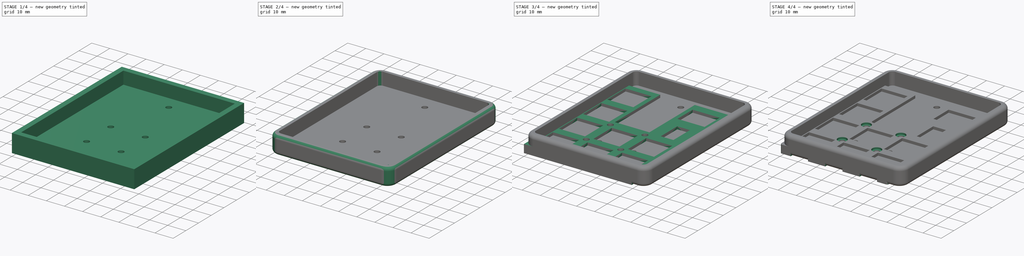
[diagram: build sequence overview — one tinted view per stage of 4, left to right]
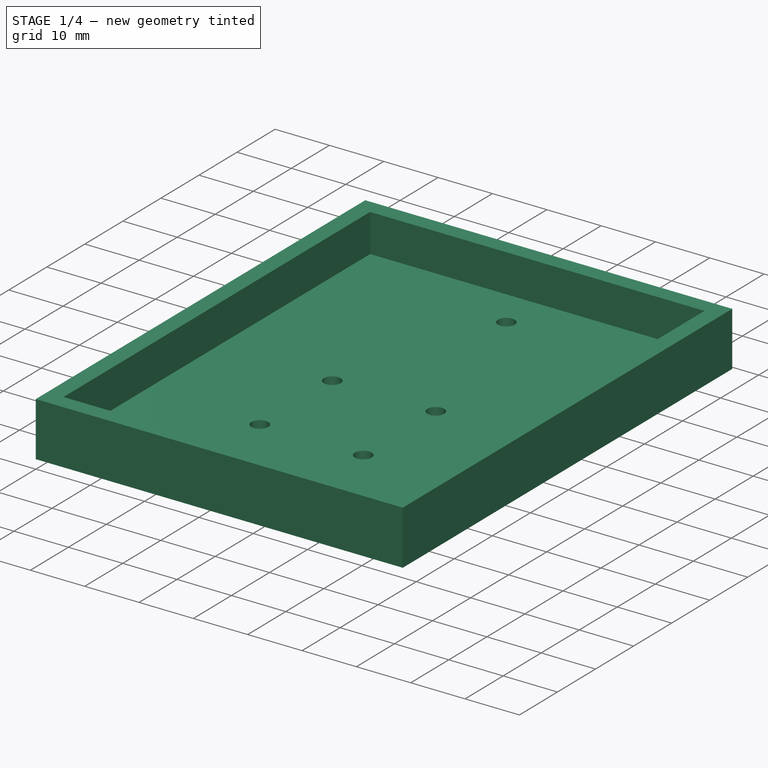
[diagram: stage 1 of 4 — iso view after this stage's code; geometry added in this stage tinted green]
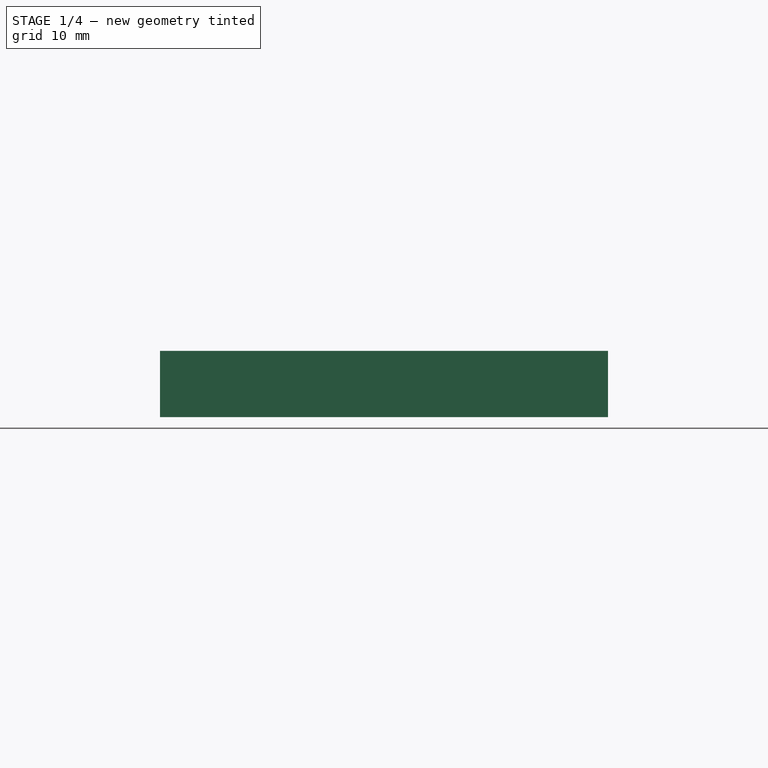
[diagram: stage 1 of 4 — front view after this stage's code; geometry added in this stage tinted green]
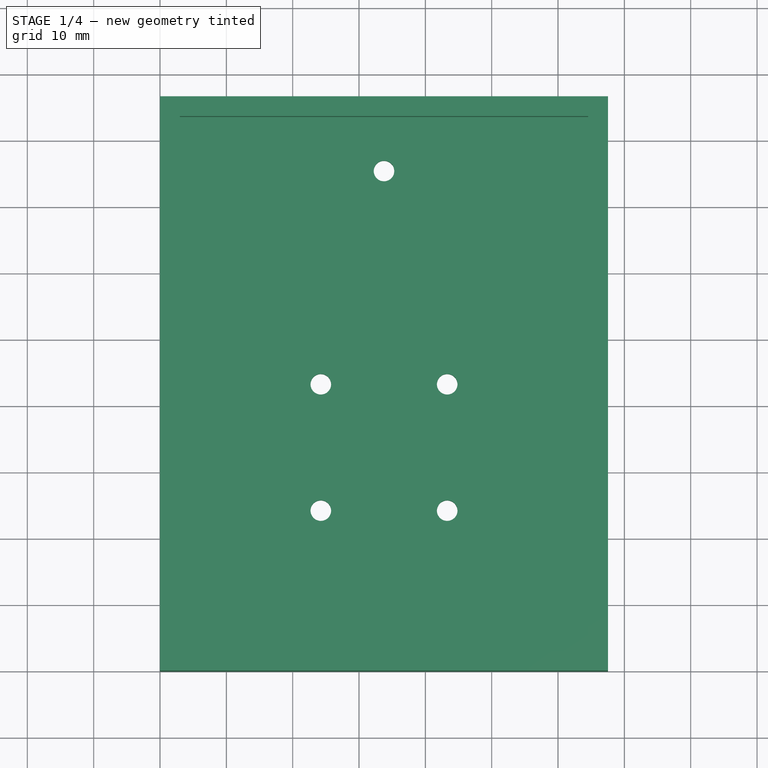
[diagram: stage 1 of 4 — top view after this stage's code; geometry added in this stage tinted green]
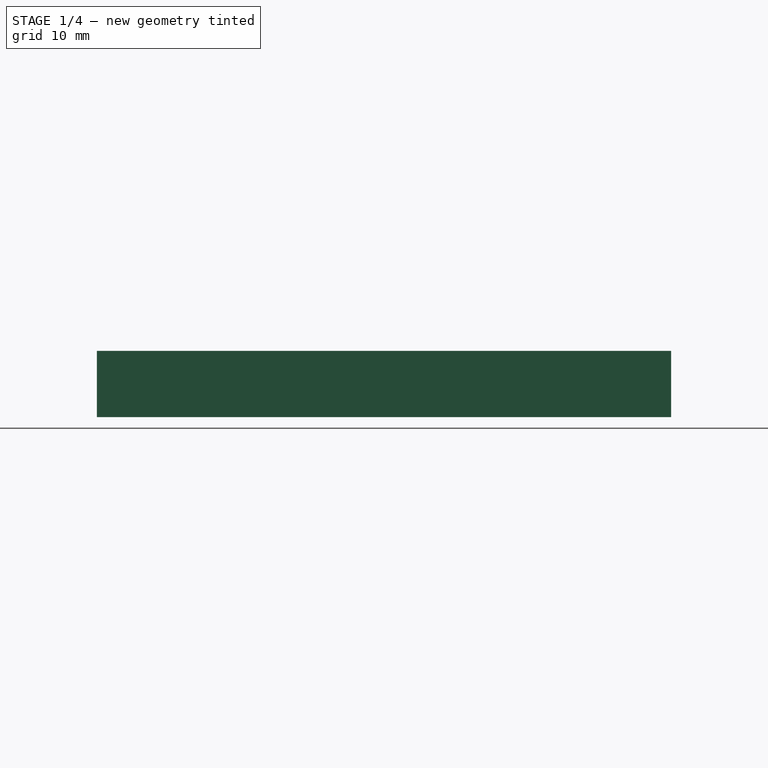
[diagram: stage 1 of 4 — right view after this stage's code; geometry added in this stage tinted green]
FCSTD DOCUMENT  (FreeCAD 0.19R)
Label: macr03xD_pcb
License: All rights reserved
LicenseURL: http://en.wikipedia.org/wiki/All_rights_reserved
objects: Sketcher::SketchObject×7, PartDesign::Pocket×5, PartDesign::Fillet×4, PartDesign::Pad×2, PartDesign::Body×2, Spreadsheet::Sheet×1
note: 31 computed .brp shape members not serialized (recipe doc carries the construction recipe); baked Part::Feature solids carry a one-line shape summary decoded from their .brp

FEATURE [PartDesign::Body] Body  label="Plate"
  Group = -> [Sketch,Pad,Sketch001,Pocket,Sketch002,Pocket001,Fillet]
  Origin = -> Origin
  Placement = pos=(4,4,5.5) rot=(0,0,1;0rad)
  Tip = -> Fillet
FEATURE [Sketcher::SketchObject] Sketch003
  FullyConstrained = true
  MapMode = 5
  Support = -> [XY_Plane001]
  expr: Constraints[10] = Spreadsheet.switch * (4 + 2 / 16) + (Spreadsheet.border_w + 1) * 2
  expr: Constraints[9] = Spreadsheet.switch * (3 + 2 / 16) + (Spreadsheet.border_w + 1) * 2
  sketch-geometry (4):
    g0: LineSegment StartX=0 StartY=0 StartZ=0 EndX=67.5312 EndY=0 EndZ=0
    g1: LineSegment StartX=67.5312 StartY=0 StartZ=0 EndX=67.5312 EndY=86.5812 EndZ=0
    g2: LineSegment StartX=0 StartY=86.5812 StartZ=0 EndX=67.5312 EndY=86.5812 EndZ=0
    g3: LineSegment StartX=0 StartY=86.5812 StartZ=0 EndX=0 EndY=0 EndZ=0
  constraints (11):
    c: Coincident(g0,g-1)
    c: PointOnObject(g0,g-1)
    c: Coincident(g1,g0)
    c: Vertical(g1)
    c: PointOnObject(g2,g-2)
    c: Coincident(g2,g1)
    c: Horizontal(g2)
    c: Coincident(g3,g2)
    c: Coincident(g3,g0)
    c: DistanceX(g0,g0) = 67.5312
    c: DistanceY(g1,g1) = 86.5812
FEATURE [PartDesign::Pad] Pad001
  Direction = (1,1,1)
  Length = 10
  Length2 = 100
  Profile = -> Sketch003
  Type = 0
  expr: Length = Spreadsheet.case_h
FEATURE [Sketcher::SketchObject] Sketch004
  FullyConstrained = true
  MapMode = 5
  Placement = pos=(0,0,10) rot=(0,0,1;0rad)
  Support = -> [Pad001]
  expr: Constraints[16] = Spreadsheet.switch * (3 + 2 / 16) + 1 * 2
  expr: Constraints[15] = Spreadsheet.switch * (4 + 2 / 16) + 1 * 2
  expr: Constraints[5] = Spreadsheet.border_w
  sketch-geometry (6):
    g0: LineSegment StartX=0 StartY=0 StartZ=0 EndX=3 EndY=0 EndZ=0
    g1: LineSegment StartX=3 StartY=0 StartZ=0 EndX=3 EndY=3 EndZ=0
    g2: LineSegment StartX=3 StartY=3 StartZ=0 EndX=64.5312 EndY=3 EndZ=0
    g3: LineSegment StartX=64.5312 StartY=3 StartZ=0 EndX=64.5312 EndY=83.5812 EndZ=0
    g4: LineSegment StartX=64.5312 StartY=83.5812 StartZ=0 EndX=3 EndY=83.5812 EndZ=0
    g5: LineSegment StartX=3 StartY=3 StartZ=0 EndX=3 EndY=83.5812 EndZ=0
  constraints (17):
    c: Coincident(g0,g-1)
    c: Coincident(g1,g0)
    c: Equal(g0,g1)
    c: Horizontal(g0)
    c: Vertical(g1)
    c: DistanceY(g1,g1) = 3
    c: Coincident(g2,g1)
    c: Horizontal(g2)
    c: Coincident(g3,g2)
    c: Vertical(g3)
    c: Coincident(g4,g3)
    c: Horizontal(g4)
    c: Coincident(g5,g2)
    c: Coincident(g5,g4)
    c: Vertical(g5)
    c: DistanceY(g3,g3) = 80.5812
    c: DistanceX(g2,g2) = 61.5312
FEATURE [PartDesign::Pocket] Pocket002
  BaseFeature = -> Pad001
  Length = 7
  Length2 = 100
  Profile = -> Sketch004
  Type = 0
  expr: Length = Spreadsheet.case_h - 3
FEATURE [Sketcher::SketchObject] Sketch005
  FullyConstrained = true
  MapMode = 5
  Placement = pos=(0,0,0) rot=(1,0,0;3.14159rad)
  Support = -> [Pocket002]
  expr: Constraints[31] = Spreadsheet.switch / 2
  expr: Constraints[28] = Spreadsheet.switch * (1 + 11 / 16)
  expr: Constraints[17] = Spreadsheet.switch
  expr: Constraints[5] = Spreadsheet.border_w + 1 + Spreadsheet.switch / 16
  expr: Constraints[2] = Spreadsheet.border_w + 1 + (1 + 1 / 16) * Spreadsheet.switch
  sketch-geometry (13):
    g0: LineSegment StartX=0 StartY=0 StartZ=0 EndX=24.2406 EndY=0 EndZ=0
    g1: LineSegment StartX=24.2406 StartY=0 StartZ=0 EndX=24.2406 EndY=-5.19062 EndZ=0
    g2: LineSegment StartX=24.2406 StartY=-5.19062 StartZ=0 EndX=24.2406 EndY=-24.2406 EndZ=0
    g3: LineSegment StartX=24.2406 StartY=-24.2406 StartZ=0 EndX=43.2906 EndY=-24.2406 EndZ=0
    g4: LineSegment StartX=24.2406 StartY=-24.2406 StartZ=0 EndX=24.2406 EndY=-43.2906 EndZ=0
    g5: LineSegment StartX=24.2406 StartY=-43.2906 StartZ=0 EndX=43.2906 EndY=-43.2906 EndZ=0
    g6: Circle CenterX=43.2906 CenterY=-43.2906 CenterZ=0 NormalX=0 NormalY=0 NormalZ=1 AngleXU=0 Radius=1.55
    g7: Circle CenterX=24.2406 CenterY=-43.2906 CenterZ=0 NormalX=0 NormalY=0 NormalZ=1 AngleXU=0 Radius=1.55
    g8: Circle CenterX=24.2406 CenterY=-24.2406 CenterZ=0 NormalX=0 NormalY=0 NormalZ=1 AngleXU=0 Radius=1.55
    g9: Circle CenterX=43.2906 CenterY=-24.2406 CenterZ=0 NormalX=0 NormalY=0 NormalZ=1 AngleXU=0 Radius=1.55
    g10: LineSegment StartX=43.2906 StartY=-43.2906 StartZ=0 EndX=43.2906 EndY=-75.4375 EndZ=0
    g11: LineSegment StartX=43.2906 StartY=-75.4375 StartZ=0 EndX=33.7656 EndY=-75.4375 EndZ=0
    g12: Circle CenterX=33.7656 CenterY=-75.4375 CenterZ=0 NormalX=0 NormalY=0 NormalZ=1 AngleXU=0 Radius=1.55
  constraints (34):
    c: Coincident(g0,g-1)
    c: Horizontal(g0)
    c: DistanceX(g0,g0) = 24.2406
    c: Coincident(g1,g0)
    c: Vertical(g1)
    c: DistanceY(g1,g1) = 5.19062
    c: Coincident(g2,g1)
    c: Vertical(g2)
    c: Coincident(g3,g2)
    c: Horizontal(g3)
    c: Coincident(g4,g2)
    c: Vertical(g4)
    c: Coincident(g5,g4)
    c: Horizontal(g5)
    c: Equal(g2,g3)
    c: Equal(g3,g4)
    c: Equal(g4,g5)
    c: DistanceY(g2,g2) = 19.05
    c: Coincident(g6,g5)
    c: Coincident(g7,g4)
    c: Coincident(g8,g2)
    c: Coincident(g9,g3)
    c: Equal(g9,g8)
    c: Equal(g8,g7)
    c: Equal(g7,g6)
    c: Diameter(g7) = 3.1
    c: Coincident(g10,g6)
    c: Vertical(g10)
    c: DistanceY(g10,g10) = 32.1469
    c: Coincident(g11,g10)
    c: Horizontal(g11)
    c: DistanceX(g11,g11) = 9.525
    c: Coincident(g12,g11)
    c: Equal(g12,g7)
FEATURE [PartDesign::Pocket] Pocket003
  BaseFeature = -> Pocket002
  Length = 3
  Length2 = 100
  Profile = -> Sketch005
  Type = 0
  expr: Length = Spreadsheet.border_w
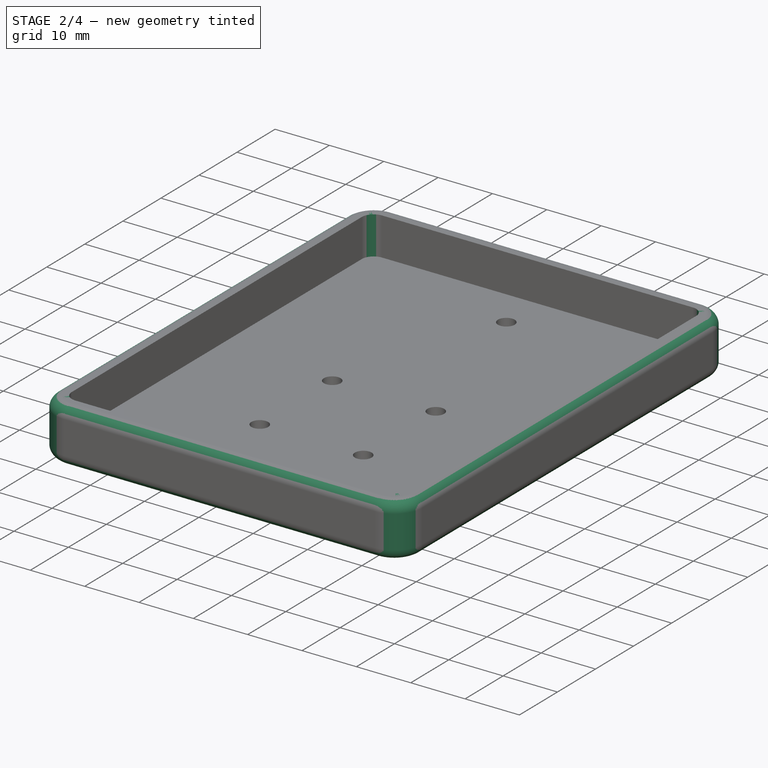
[diagram: stage 2 of 4 — iso view after this stage's code; geometry added in this stage tinted green]
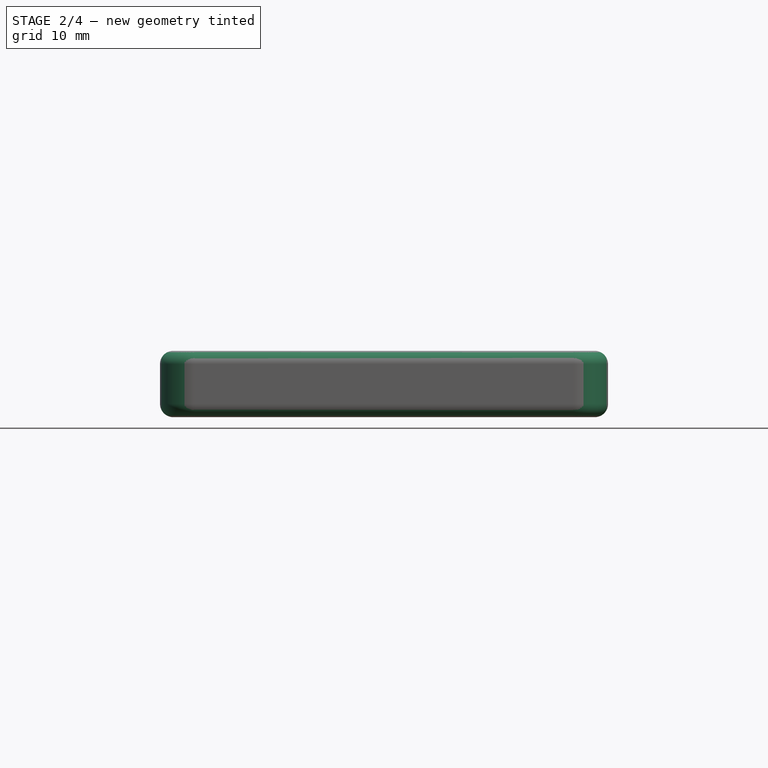
[diagram: stage 2 of 4 — front view after this stage's code; geometry added in this stage tinted green]
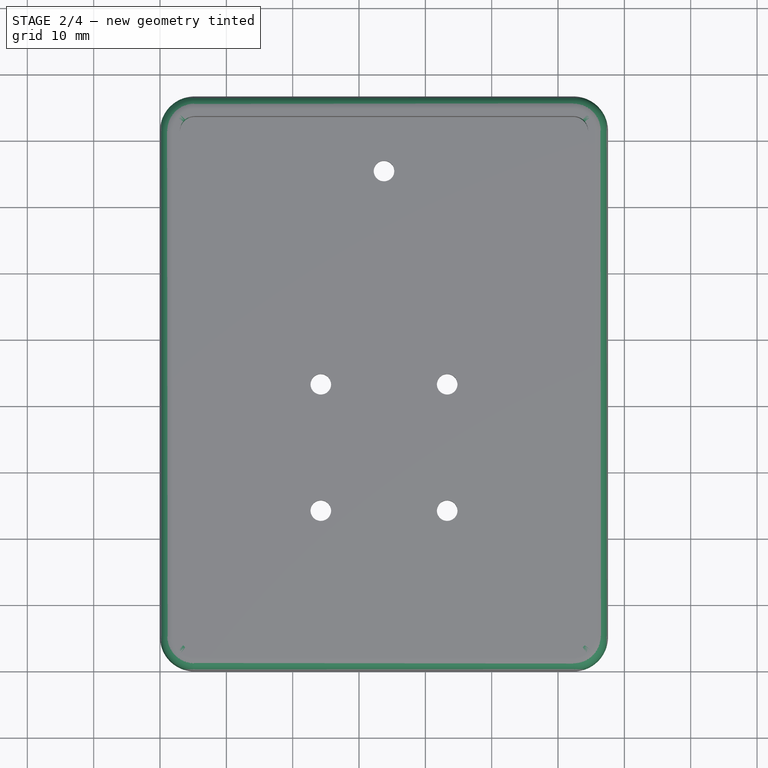
[diagram: stage 2 of 4 — top view after this stage's code; geometry added in this stage tinted green]
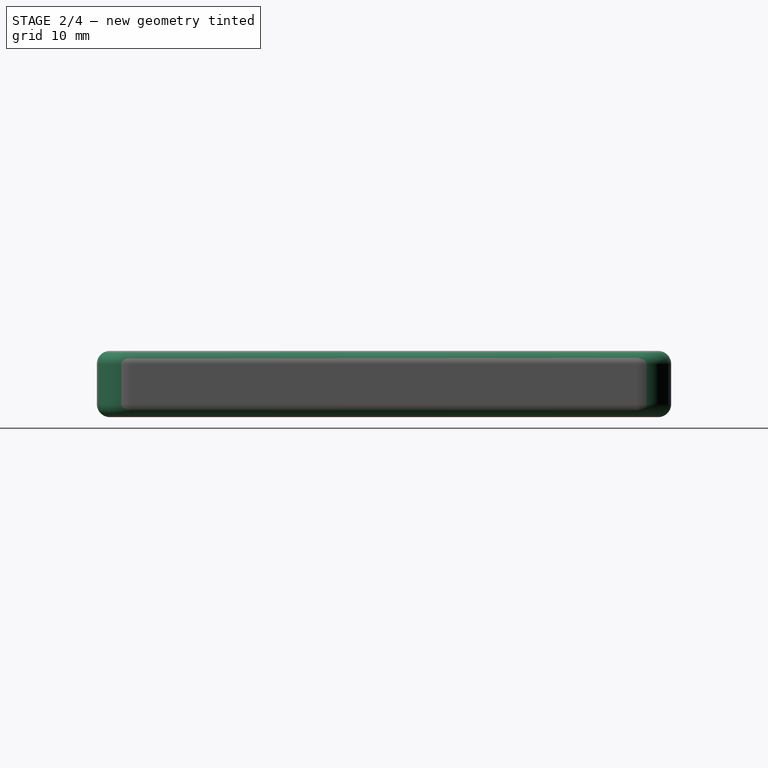
[diagram: stage 2 of 4 — right view after this stage's code; geometry added in this stage tinted green]
FEATURE [PartDesign::Fillet] Fillet001
  Base = -> Pocket003 [Edge35,Edge37,Edge32,Edge33]
  BaseFeature = -> Pocket003
  Radius = 2.19062
  SupportTransform = false
  expr: Radius = 1 + 1 / 16 * Spreadsheet.switch
FEATURE [PartDesign::Fillet] Fillet002
  Base = -> Fillet001 [Edge29,Edge32,Edge30,Edge34]
  BaseFeature = -> Fillet001
  Radius = 5.19062
  SupportTransform = false
  expr: Radius = Spreadsheet.border_w + 1 + Spreadsheet.switch * 1 / 16
FEATURE [PartDesign::Fillet] Fillet003
  Base = -> Fillet002 [Edge1,Edge17]
  BaseFeature = -> Fillet002
  Radius = 2
  SupportTransform = false
  expr: Radius = Spreadsheet.border_w - 1
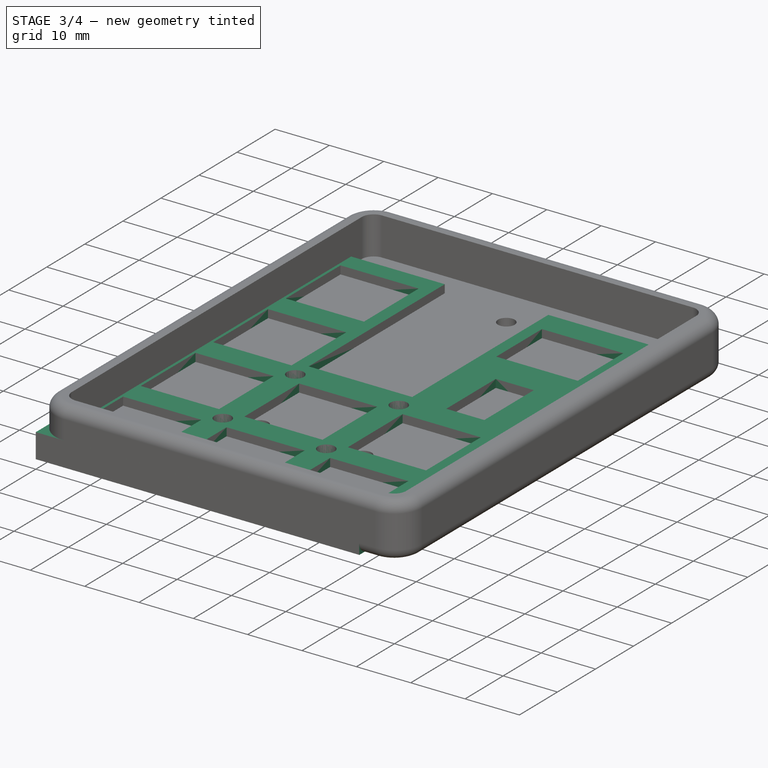
[diagram: stage 3 of 4 — iso view after this stage's code; geometry added in this stage tinted green]
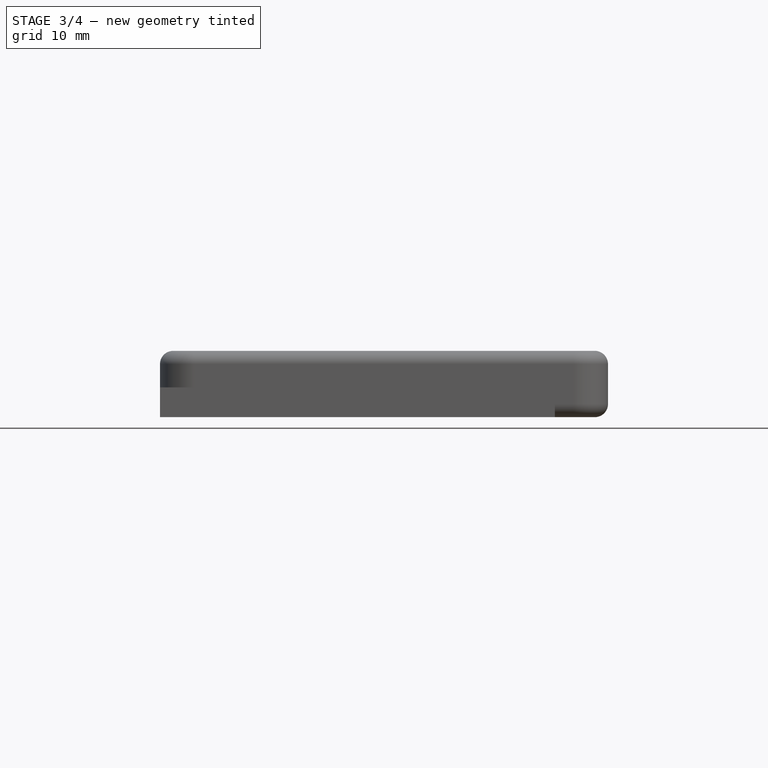
[diagram: stage 3 of 4 — front view after this stage's code; geometry added in this stage tinted green]
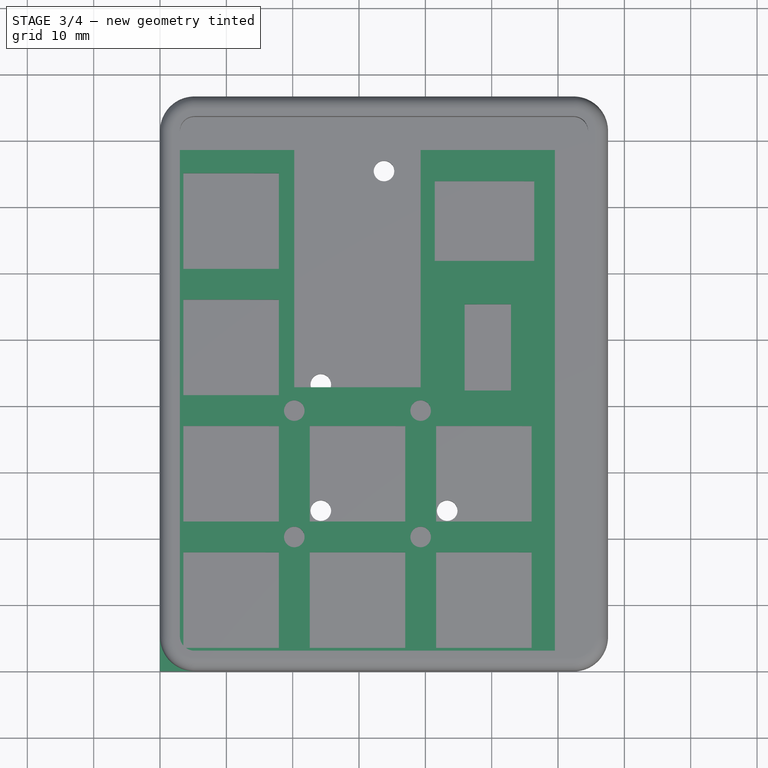
[diagram: stage 3 of 4 — top view after this stage's code; geometry added in this stage tinted green]
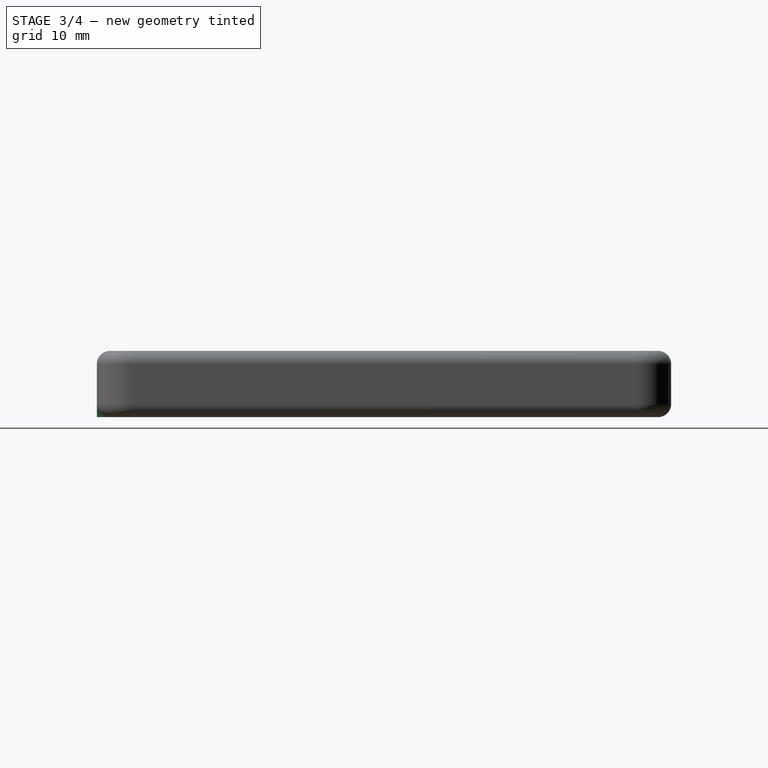
[diagram: stage 3 of 4 — right view after this stage's code; geometry added in this stage tinted green]
FEATURE [Sketcher::SketchObject] Sketch
  FullyConstrained = true
  MapMode = 2
  Support = -> [XY_Plane]
  expr: Constraints[213] = (17 / 16 * Spreadsheet.switch - 14) / 2
  expr: Constraints[209] = Spreadsheet.switch
  expr: Constraints[86] = Spreadsheet.switch_hole
  expr: Constraints[126] = Spreadsheet.switch * 2 - (Spreadsheet.switch - Spreadsheet.switch_hole) / 2
  expr: Constraints[5] = (4 + 2 / 16) * Spreadsheet.switch
  expr: Constraints[6] = (3 + 2 / 16) * Spreadsheet.switch
  expr: Constraints[114] = Spreadsheet.switch
  sketch-geometry (81):
    g0: LineSegment StartX=0 StartY=0 StartZ=0 EndX=59.5312 EndY=0 EndZ=0
    g1: LineSegment StartX=59.5312 StartY=0 StartZ=0 EndX=59.5312 EndY=78.5812 EndZ=0
    g2: LineSegment StartX=3.51562 StartY=3.51562 StartZ=0 EndX=17.9156 EndY=3.51562 EndZ=0
    g3: LineSegment StartX=3.51562 StartY=3.51562 StartZ=0 EndX=3.51562 EndY=17.9156 EndZ=0
    g4: LineSegment StartX=3.51562 StartY=17.9156 StartZ=0 EndX=17.9156 EndY=17.9156 EndZ=0
    g5: LineSegment StartX=17.9156 StartY=17.9156 StartZ=0 EndX=17.9156 EndY=3.51562 EndZ=0
    g6: LineSegment StartX=22.5656 StartY=17.9156 StartZ=0 EndX=22.5656 EndY=3.51562 EndZ=0
    g7: LineSegment StartX=22.5656 StartY=17.9156 StartZ=0 EndX=36.9656 EndY=17.9156 EndZ=0
    g8: LineSegment StartX=36.9656 StartY=17.9156 StartZ=0 EndX=36.9656 EndY=3.51562 EndZ=0
    g9: LineSegment StartX=22.5656 StartY=3.51562 StartZ=0 EndX=36.9656 EndY=3.51562 EndZ=0
    g10: LineSegment StartX=41.6156 StartY=17.9156 StartZ=0 EndX=41.6156 EndY=3.51562 EndZ=0
    g11: LineSegment StartX=41.6156 StartY=3.51562 StartZ=0 EndX=56.0156 EndY=3.51562 EndZ=0
    g12: LineSegment StartX=56.0156 StartY=3.51562 StartZ=0 EndX=56.0156 EndY=17.9156 EndZ=0
    g13: LineSegment StartX=41.6156 StartY=17.9156 StartZ=0 EndX=56.0156 EndY=17.9156 EndZ=0
    g14: LineSegment StartX=3.51562 StartY=36.9656 StartZ=0 EndX=3.51562 EndY=22.5656 EndZ=0
    g15: LineSegment StartX=3.51562 StartY=22.5656 StartZ=0 EndX=17.9156 EndY=22.5656 EndZ=0
    g16: LineSegment StartX=17.9156 StartY=22.5656 StartZ=0 EndX=17.9156 EndY=36.9656 EndZ=0
    g17: LineSegment StartX=3.51562 StartY=36.9656 StartZ=0 EndX=17.9156 EndY=36.9656 EndZ=0
    g18: LineSegment StartX=22.5656 StartY=36.9656 StartZ=0 EndX=22.5656 EndY=22.5656 EndZ=0
    g19: LineSegment StartX=22.5656 StartY=22.5656 StartZ=0 EndX=36.9656 EndY=22.5656 EndZ=0
    g20: LineSegment StartX=36.9656 StartY=22.5656 StartZ=0 EndX=36.9656 EndY=36.9656 EndZ=0
    g21: LineSegment StartX=22.5656 StartY=36.9656 StartZ=0 EndX=36.9656 EndY=36.9656 EndZ=0
    g22: LineSegment StartX=41.6156 StartY=36.9656 StartZ=0 EndX=41.6156 EndY=22.5656 EndZ=0
    g23: LineSegment StartX=41.6156 StartY=22.5656 StartZ=0 EndX=56.0156 EndY=22.5656 EndZ=0
    g24: LineSegment StartX=56.0156 StartY=22.5656 StartZ=0 EndX=56.0156 EndY=36.9656 EndZ=0
    g25: LineSegment StartX=41.6156 StartY=36.9656 StartZ=0 EndX=56.0156 EndY=36.9656 EndZ=0
    g26: LineSegment StartX=3.51562 StartY=56.0156 StartZ=0 EndX=3.51562 EndY=41.6156 EndZ=0
    g27: LineSegment StartX=3.51562 StartY=41.6156 StartZ=0 EndX=17.9156 EndY=41.6156 EndZ=0
    g28: LineSegment StartX=17.9156 StartY=41.6156 StartZ=0 EndX=17.9156 EndY=56.0156 EndZ=0
    g29: LineSegment StartX=3.51562 StartY=56.0156 StartZ=0 EndX=17.9156 EndY=56.0156 EndZ=0
    g30: LineSegment StartX=3.51562 StartY=75.0656 StartZ=0 EndX=3.51562 EndY=60.6656 EndZ=0
    g31: LineSegment StartX=3.51562 StartY=60.6656 StartZ=0 EndX=17.9156 EndY=60.6656 EndZ=0
    g32: LineSegment StartX=17.9156 StartY=60.6656 StartZ=0 EndX=17.9156 EndY=75.0656 EndZ=0
    g33: LineSegment StartX=3.51562 StartY=75.0656 StartZ=0 EndX=17.9156 EndY=75.0656 EndZ=0
    g34: LineSegment StartX=3.51562 StartY=3.51562 StartZ=0 EndX=3.51562 EndY=22.5656 EndZ=0
    g35: LineSegment StartX=3.51562 StartY=22.5656 StartZ=0 EndX=3.51562 EndY=41.6156 EndZ=0
    g36: LineSegment StartX=3.51562 StartY=41.6156 StartZ=0 EndX=3.51562 EndY=60.6656 EndZ=0
    g37: LineSegment StartX=3.51562 StartY=22.5656 StartZ=0 EndX=22.5656 EndY=22.5656 EndZ=0
    g38: LineSegment StartX=22.5656 StartY=22.5656 StartZ=0 EndX=41.6156 EndY=22.5656 EndZ=0
    g39: LineSegment StartX=3.51562 StartY=3.51562 StartZ=0 EndX=22.5656 EndY=3.51562 EndZ=0
    g40: LineSegment StartX=22.5656 StartY=3.51562 StartZ=0 EndX=41.6156 EndY=3.51562 EndZ=0
    g41: LineSegment StartX=0 StartY=78.5812 StartZ=0 EndX=3.51562 EndY=75.0656 EndZ=0
    g42: LineSegment StartX=0 StartY=78.5812 StartZ=0 EndX=20.2406 EndY=78.5812 EndZ=0
    g43: LineSegment StartX=20.2406 StartY=78.5812 StartZ=0 EndX=20.2406 EndY=42.8062 EndZ=0
    g44: LineSegment StartX=20.2406 StartY=42.8062 StartZ=0 EndX=39.2906 EndY=42.8062 EndZ=0
    g45: LineSegment StartX=39.2906 StartY=42.8062 StartZ=0 EndX=39.2906 EndY=78.5812 EndZ=0
    g46: LineSegment StartX=39.2906 StartY=78.5812 StartZ=0 EndX=59.5312 EndY=78.5812 EndZ=0
    g47: LineSegment StartX=45.9109 StartY=55.3156 StartZ=0 EndX=45.9109 EndY=42.3156 EndZ=0
    g48: LineSegment StartX=45.9109 StartY=42.3156 StartZ=0 EndX=52.9109 EndY=42.3156 EndZ=0
    g49: LineSegment StartX=52.9109 StartY=42.3156 StartZ=0 EndX=52.9109 EndY=55.3156 EndZ=0
    g50: LineSegment StartX=45.9109 StartY=55.3156 StartZ=0 EndX=52.9109 EndY=55.3156 EndZ=0
    g51: LineSegment StartX=45.9109 StartY=55.3156 StartZ=0 EndX=39.2906 EndY=78.5812 EndZ=0
    g52: LineSegment StartX=52.9109 StartY=55.3156 StartZ=0 EndX=59.5312 EndY=78.5812 EndZ=0
    g53: LineSegment StartX=17.9156 StartY=56.0156 StartZ=0 EndX=45.9109 EndY=55.3156 EndZ=0
    g54: LineSegment StartX=17.9156 StartY=41.6156 StartZ=0 EndX=45.9109 EndY=42.3156 EndZ=0
    g55: Circle CenterX=20.2406 CenterY=20.2406 CenterZ=0 NormalX=0 NormalY=0 NormalZ=1 AngleXU=0 Radius=1.55
    g56: Circle CenterX=39.2906 CenterY=20.2406 CenterZ=0 NormalX=0 NormalY=0 NormalZ=1 AngleXU=0 Radius=1.55
    g57: Circle CenterX=20.2406 CenterY=39.2906 CenterZ=0 NormalX=0 NormalY=0 NormalZ=1 AngleXU=0 Radius=1.55
    g58: Circle CenterX=39.2906 CenterY=39.2906 CenterZ=0 NormalX=0 NormalY=0 NormalZ=1 AngleXU=0 Radius=1.55
    g59: LineSegment StartX=17.9156 StartY=17.9156 StartZ=0 EndX=20.2406 EndY=20.2406 EndZ=0
    g60: LineSegment StartX=20.2406 StartY=20.2406 StartZ=0 EndX=22.5656 EndY=17.9156 EndZ=0
    g61: LineSegment StartX=20.2406 StartY=20.2406 StartZ=0 EndX=17.9156 EndY=22.5656 EndZ=0
    g62: LineSegment StartX=36.9656 StartY=22.5656 StartZ=0 EndX=39.2906 EndY=20.2406 EndZ=0
    g63: LineSegment StartX=36.9656 StartY=17.9156 StartZ=0 EndX=39.2906 EndY=20.2406 EndZ=0
    g64: LineSegment StartX=41.6156 StartY=17.9156 StartZ=0 EndX=39.2906 EndY=20.2406 EndZ=0
    g65: LineSegment StartX=17.9156 StartY=36.9656 StartZ=0 EndX=20.2406 EndY=39.2906 EndZ=0
    g66: LineSegment StartX=22.5656 StartY=36.9656 StartZ=0 EndX=20.2406 EndY=39.2906 EndZ=0
    g67: LineSegment StartX=17.9156 StartY=41.6156 StartZ=0 EndX=20.2406 EndY=39.2906 EndZ=0
    g68: LineSegment StartX=41.4109 StartY=73.8656 StartZ=0 EndX=41.4109 EndY=61.8656 EndZ=0
    g69: LineSegment StartX=41.4109 StartY=61.8656 StartZ=0 EndX=56.4109 EndY=61.8656 EndZ=0
    g70: LineSegment StartX=56.4109 StartY=61.8656 StartZ=0 EndX=56.4109 EndY=73.8656 EndZ=0
    g71: LineSegment StartX=56.4109 StartY=73.8656 StartZ=0 EndX=41.4109 EndY=73.8656 EndZ=0
    g72: LineSegment StartX=41.4109 StartY=73.8656 StartZ=0 EndX=48.9109 EndY=67.8656 EndZ=0
    g73: LineSegment StartX=48.9109 StartY=67.8656 StartZ=0 EndX=56.4109 EndY=73.8656 EndZ=0
    g74: LineSegment StartX=41.4109 StartY=61.8656 StartZ=0 EndX=48.9109 EndY=67.8656 EndZ=0
    g75: LineSegment StartX=48.9109 StartY=67.8656 StartZ=0 EndX=56.4109 EndY=61.8656 EndZ=0
    g76: LineSegment StartX=41.4109 StartY=73.8656 StartZ=0 EndX=17.9156 EndY=75.0656 EndZ=0
    g77: LineSegment StartX=17.9156 StartY=60.6656 StartZ=0 EndX=41.4109 EndY=61.8656 EndZ=0
    g78: LineSegment StartX=0 StartY=0 StartZ=0 EndX=3.51562 EndY=3.51562 EndZ=0
    g79: LineSegment StartX=56.0156 StartY=3.51562 StartZ=0 EndX=59.5312 EndY=0 EndZ=0
    g80: LineSegment StartX=0 StartY=78.5812 StartZ=0 EndX=0 EndY=0 EndZ=0
  constraints (214):
    c: Coincident(g0,g-1)
    c: PointOnObject(g0,g-1)
    c: Coincident(g1,g0)
    c: Vertical(g1)
    c: PointOnObject(g42,g-2)
    c: DistanceY(g1,g1) = 78.5812
    c: DistanceX(g42,g1) = 59.5312
    c: Horizontal(g2)
    c: Coincident(g3,g2)
    c: Vertical(g3)
    c: Coincident(g4,g3)
    c: Horizontal(g4)
    c: Coincident(g5,g4)
    c: Coincident(g5,g2)
    c: Vertical(g5)
    c: Vertical(g6)
    c: Coincident(g7,g6)
    c: Horizontal(g7)
    c: Coincident(g8,g7)
    c: Vertical(g8)
    c: Coincident(g9,g6)
    c: Coincident(g9,g8)
    c: Horizontal(g9)
    c: Vertical(g10)
    c: Coincident(g11,g10)
    c: Horizontal(g11)
    c: Coincident(g12,g11)
    c: Vertical(g12)
    c: Coincident(g13,g10)
    c: Coincident(g13,g12)
    c: Horizontal(g13)
    c: Vertical(g14)
    c: Coincident(g15,g14)
    c: Horizontal(g15)
    c: Coincident(g16,g15)
    c: Vertical(g16)
    c: Coincident(g17,g14)
    c: Coincident(g17,g16)
    c: Vertical(g18)
    c: Coincident(g19,g18)
    c: Coincident(g20,g19)
    c: Vertical(g20)
    c: Coincident(g21,g18)
    c: Coincident(g21,g20)
    c: Horizontal(g21)
    c: Horizontal(g19)
    c: Horizontal(g17)
    c: Vertical(g22)
    c: Coincident(g23,g22)
    c: Horizontal(g23)
    c: Coincident(g24,g23)
    c: Vertical(g24)
    c: Coincident(g25,g22)
    c: Coincident(g25,g24)
    c: Horizontal(g25)
    c: Vertical(g26)
    c: Coincident(g27,g26)
    c: Horizontal(g27)
    c: Coincident(g28,g27)
    c: Vertical(g28)
    c: Coincident(g29,g26)
    c: Coincident(g29,g28)
    c: Horizontal(g29)
    c: Vertical(g30)
    c: Coincident(g31,g30)
    c: Horizontal(g31)
    c: Coincident(g32,g31)
    c: Vertical(g32)
    c: Coincident(g33,g30)
    c: Coincident(g33,g32)
    c: Horizontal(g33)
    c: Equal(g33,g32)
    c: Equal(g32,g29)
    c: Equal(g29,g28)
    c: Equal(g28,g17)
    c: Equal(g17,g16)
    c: Equal(g16,g21)
    c: Equal(g21,g20)
    c: Equal(g20,g4)
    c: Equal(g4,g5)
    c: Equal(g5,g7)
    c: Equal(g7,g8)
    c: Equal(g8,g25)
    c: Equal(g25,g24)
    c: Equal(g24,g13)
    c: Equal(g13,g12)
    c: DistanceY(g5,g5) = 14.4
    c: Vertical(g30,g26)
    c: Vertical(g26,g14)
    c: Vertical(g14,g2)
    c: Horizontal(g14,g18)
    c: Horizontal(g18,g22)
    c: Horizontal(g2,g6)
    c: Horizontal(g6,g10)
    c: Coincident(g34,g2)
    c: Coincident(g34,g14)
    c: Coincident(g35,g14)
    c: Coincident(g35,g26)
    c: Coincident(g36,g26)
    c: Coincident(g36,g30)
    c: Coincident(g37,g14)
    c: Coincident(g37,g18)
    c: Coincident(g38,g18)
    c: Coincident(g38,g22)
    c: Coincident(g39,g2)
    c: Coincident(g39,g6)
    c: Coincident(g40,g6)
    c: Coincident(g40,g10)
    c: Equal(g36,g35)
    c: Equal(g35,g34)
    c: Equal(g34,g37)
    c: Equal(g37,g39)
    c: Equal(g39,g40)
    c: Equal(g40,g38)
    c: DistanceY(g34,g34) = 19.05
    c: Coincident(g41,g30)
    c: Horizontal(g42)
    c: Coincident(g43,g42)
    c: Vertical(g43)
    c: Coincident(g44,g43)
    c: Horizontal(g44)
    c: Coincident(g45,g44)
    c: Vertical(g45)
    c: Coincident(g46,g45)
    c: Coincident(g46,g1)
    c: Horizontal(g46)
    c: DistanceY(g45,g45) = 35.775
    c: Vertical(g47)
    c: Coincident(g48,g47)
    c: Horizontal(g48)
    c: Coincident(g49,g48)
    c: Vertical(g49)
    c: Coincident(g50,g47)
    c: Coincident(g50,g49)
    c: Horizontal(g50)
    c: DistanceY(g49,g49) = 13
    c: DistanceX(g48,g48) = 7
    c: Coincident(g51,g47)
    c: Coincident(g51,g45)
    c: Coincident(g52,g49)
    c: Coincident(g52,g1)
    c: Equal(g52,g51)
    c: Coincident(g53,g28)
    c: Coincident(g53,g47)
    c: Coincident(g54,g27)
    c: Coincident(g54,g47)
    c: Equal(g53,g54)
    c: Vertical(g58,g56)
    c: Horizontal(g57,g58)
    c: Horizontal(g55,g56)
    c: Equal(g55,g56)
    c: Equal(g56,g58)
    c: Equal(g58,g57)
    c: Coincident(g59,g4)
    c: Coincident(g59,g55)
    c: Coincident(g60,g6)
    c: Coincident(g60,g55)
    c: Coincident(g61,g55)
    c: Coincident(g61,g15)
    c: Coincident(g62,g19)
    c: Coincident(g62,g56)
    c: Coincident(g63,g7)
    c: Coincident(g63,g56)
    c: Coincident(g64,g10)
    c: Coincident(g64,g56)
    c: Coincident(g65,g16)
    c: Coincident(g65,g57)
    c: Coincident(g66,g18)
    c: Coincident(g66,g57)
    c: Coincident(g67,g27)
    c: Coincident(g67,g57)
    c: Diameter(g55) = 3.1
    c: Equal(g60,g59)
    c: Equal(g59,g61)
    c: Equal(g61,g62)
    c: Equal(g64,g66)
    c: Equal(g66,g65)
    c: Vertical(g68)
    c: Coincident(g69,g68)
    c: Coincident(g70,g69)
    c: Vertical(g70)
    c: Coincident(g71,g70)
    c: Coincident(g71,g68)
    c: Horizontal(g71)
    c: Horizontal(g69)
    c: DistanceY(g68,g68) = 12
    c: DistanceX(g71,g71) = 15
    c: Coincident(g72,g68)
    c: Coincident(g73,g72)
    c: Coincident(g73,g70)
    c: Coincident(g74,g68)
    c: Coincident(g74,g72)
    c: Coincident(g75,g72)
    c: Coincident(g75,g69)
    c: Equal(g73,g75)
    c: Equal(g75,g74)
    c: Coincident(g76,g68)
    c: Coincident(g76,g32)
    c: Coincident(g77,g31)
    c: Coincident(g77,g68)
    c: Equal(g77,g76)
    c: Coincident(g78,g2)
    c: Coincident(g79,g11)
    c: Equal(g41,g78)
    c: Equal(g78,g79)
    c: Coincident(g79,g0)
    c: Coincident(g78,g0)
    c: Horizontal(g42,g45)
    c: Coincident(g41,g42)
    c: DistanceX(g44,g44) = 19.05
    c: Equal(g46,g42)
    c: Coincident(g80,g42)
    c: Coincident(g80,g0)
    c: DistanceX(g70,g1) = 3.12031
FEATURE [Spreadsheet::Sheet] Spreadsheet
  cells = A1(switch)=19.05; B1(border_w)=3; A2(switch_hole)=14.4; B2(case_h)=10
FEATURE [PartDesign::Pad] Pad
  Direction = (1,1,1)
  Length = 4.5
  Length2 = 100
  Profile = -> Sketch
  Type = 0
FEATURE [Sketcher::SketchObject] Sketch006
  FullyConstrained = true
  MapMode = 5
  Placement = pos=(0,0,0) rot=(1,0,0;3.14159rad)
  Support = -> [Fillet003]
  expr: Constraints[10] = Spreadsheet.border_w + 1 + 6 / 2
  expr: Constraints[21] = Spreadsheet.switch * (3 + 2 / 16) - 6
  expr: Constraints[22] = Spreadsheet.switch * (4 + 2 / 16) - 6
  sketch-geometry (9):
    g0: Circle CenterX=60.5312 CenterY=-7 CenterZ=0 NormalX=0 NormalY=0 NormalZ=1 AngleXU=0 Radius=3
    g1: Circle CenterX=7 CenterY=-7 CenterZ=0 NormalX=0 NormalY=0 NormalZ=1 AngleXU=0 Radius=3
    g2: Circle CenterX=7 CenterY=-79.5812 CenterZ=0 NormalX=0 NormalY=0 NormalZ=1 AngleXU=0 Radius=3
    g3: Circle CenterX=60.5313 CenterY=-79.5812 CenterZ=0 NormalX=0 NormalY=0 NormalZ=1 AngleXU=0 Radius=3
    g4: LineSegment StartX=0 StartY=0 StartZ=0 EndX=7 EndY=0 EndZ=0
    g5: LineSegment StartX=7 StartY=0 StartZ=0 EndX=7 EndY=-7 EndZ=0
    g6: LineSegment StartX=60.5312 StartY=-7 StartZ=0 EndX=7 EndY=-7 EndZ=0
    g7: LineSegment StartX=7 StartY=-79.5812 StartZ=0 EndX=7 EndY=-7 EndZ=0
    g8: LineSegment StartX=60.5313 StartY=-79.5812 StartZ=0 EndX=7 EndY=-79.5812 EndZ=0
  constraints (23):
    c: Equal(g3,g0)
    c: Equal(g0,g1)
    c: Equal(g1,g2)
    c: Diameter(g1) = 6
    c: Coincident(g4,g-1)
    c: Coincident(g5,g4)
    c: Coincident(g5,g1)
    c: Equal(g4,g5)
    c: Horizontal(g4)
    c: Vertical(g5)
    c: DistanceY(g5,g5) = 7
    c: Coincident(g6,g0)
    c: Coincident(g6,g1)
    c: Horizontal(g6)
    c: Coincident(g7,g2)
    c: Coincident(g7,g1)
    c: Vertical(g7)
    c: Coincident(g8,g3)
    c: Coincident(g8,g2)
    c: Horizontal(g8)
    c: Equal(g8,g6)
    c: DistanceX(g6,g6) = 53.5312
    c: DistanceY(g7,g7) = 72.5812
FEATURE [PartDesign::Pocket] Pocket004
  BaseFeature = -> Fillet003
  Length = 1
  Length2 = 100
  Profile = -> Sketch006
  Type = 0
FEATURE [PartDesign::Body] Body001  label="Case"
  Group = -> [Sketch003,Pad001,Sketch004,Pocket002,Sketch005,Pocket003,Fillet001,Fillet002,Fillet003,Sketch006,Pocket004]
  Origin = -> Origin001
  Tip = -> Pocket004
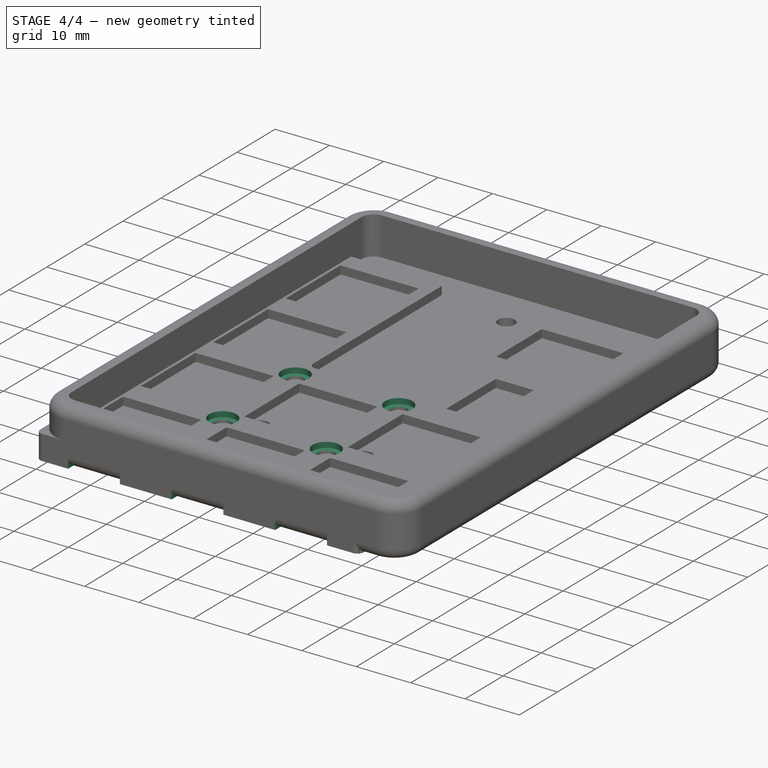
[diagram: stage 4 of 4 — iso view after this stage's code; geometry added in this stage tinted green]
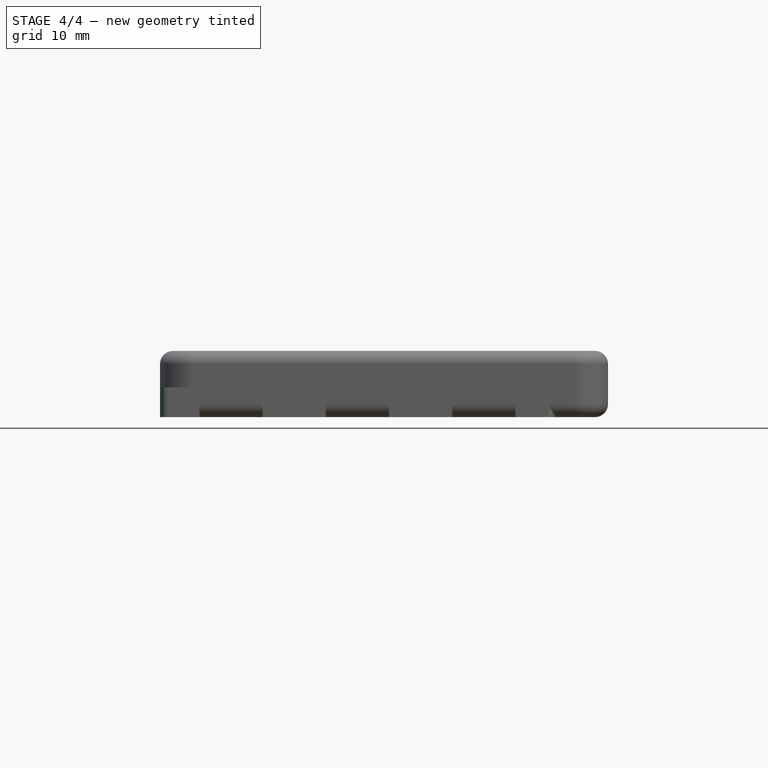
[diagram: stage 4 of 4 — front view after this stage's code; geometry added in this stage tinted green]
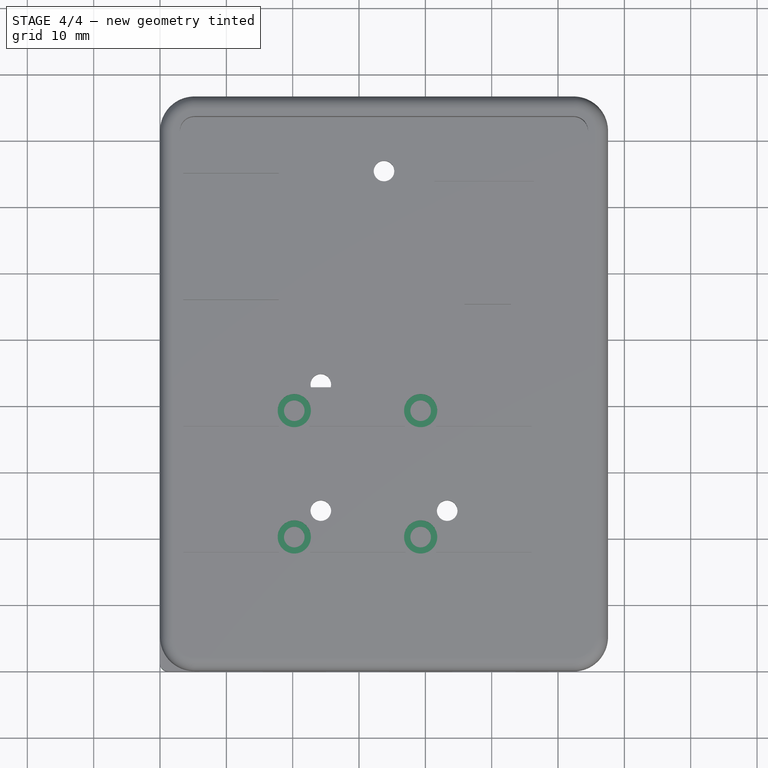
[diagram: stage 4 of 4 — top view after this stage's code; geometry added in this stage tinted green]
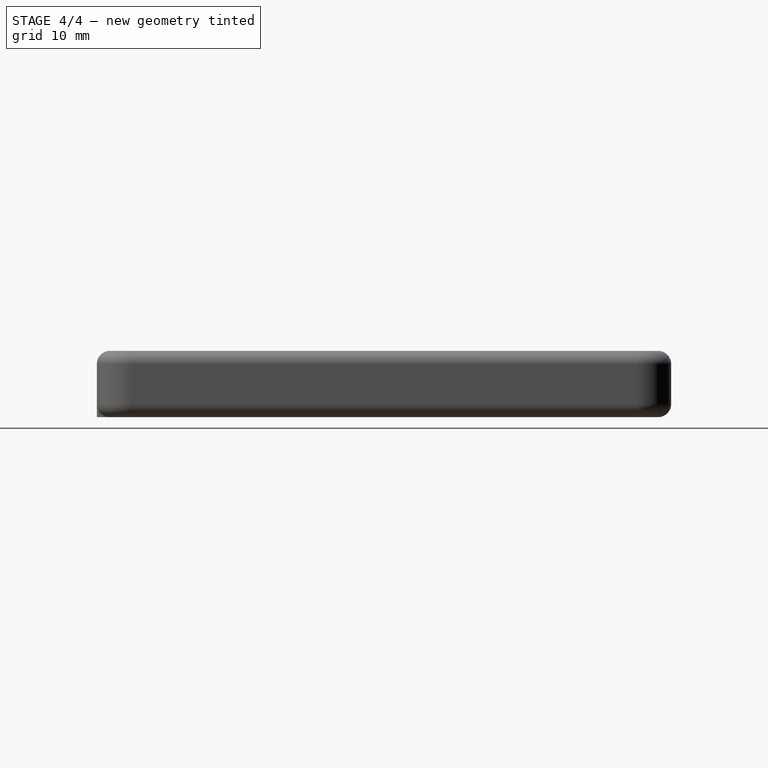
[diagram: stage 4 of 4 — right view after this stage's code; geometry added in this stage tinted green]
FEATURE [Sketcher::SketchObject] Sketch001
  FullyConstrained = true
  MapMode = 5
  Placement = pos=(0,0,0) rot=(1,0,0;3.14159rad)
  Support = -> [Pad]
  expr: Constraints[27] = Spreadsheet.switch
  expr: Constraints[13] = Spreadsheet.switch * 8 / 16
  expr: Constraints[12] = Spreadsheet.switch * 2 / 16
  expr: Constraints[2] = Spreadsheet.switch * 5 / 16
  sketch-geometry (51):
    g0: LineSegment StartX=0 StartY=0 StartZ=0 EndX=5.95312 EndY=0 EndZ=0
    g1: LineSegment StartX=5.95312 StartY=0 StartZ=0 EndX=5.95312 EndY=-2.38125 EndZ=0
    g2: LineSegment StartX=5.95312 StartY=-2.38125 StartZ=0 EndX=15.4781 EndY=-2.38125 EndZ=0
    g3: LineSegment StartX=15.4781 StartY=-2.38125 StartZ=0 EndX=15.4781 EndY=0 EndZ=0
    g4: LineSegment StartX=15.4781 StartY=0 StartZ=0 EndX=5.95312 EndY=0 EndZ=0
    g5: LineSegment StartX=15.4781 StartY=-21.4313 StartZ=0 EndX=15.4781 EndY=-19.05 EndZ=0
    g6: LineSegment StartX=15.4781 StartY=-19.05 StartZ=0 EndX=5.95312 EndY=-19.05 EndZ=0
    g7: LineSegment StartX=15.4781 StartY=-21.4313 StartZ=0 EndX=5.95312 EndY=-21.4313 EndZ=0
    g8: LineSegment StartX=5.95312 StartY=-21.4313 StartZ=0 EndX=5.95312 EndY=-19.05 EndZ=0
    g9: LineSegment StartX=5.95312 StartY=0 StartZ=0 EndX=5.95312 EndY=-19.05 EndZ=0
    g10: LineSegment StartX=5.95312 StartY=-19.05 StartZ=0 EndX=5.95312 EndY=-38.1 EndZ=0
    g11: LineSegment StartX=5.95312 StartY=-38.1 StartZ=0 EndX=15.4781 EndY=-38.1 EndZ=0
    g12: LineSegment StartX=15.4781 StartY=-38.1 StartZ=0 EndX=15.4781 EndY=-40.4813 EndZ=0
    g13: LineSegment StartX=15.4781 StartY=-40.4813 StartZ=0 EndX=5.95312 EndY=-40.4813 EndZ=0
    g14: LineSegment StartX=5.95312 StartY=-38.1 StartZ=0 EndX=5.95312 EndY=-40.4813 EndZ=0
    g15: LineSegment StartX=15.4781 StartY=-59.5312 StartZ=0 EndX=15.4781 EndY=-57.15 EndZ=0
    g16: LineSegment StartX=15.4781 StartY=-57.15 StartZ=0 EndX=5.95312 EndY=-57.15 EndZ=0
    g17: LineSegment StartX=15.4781 StartY=-59.5312 StartZ=0 EndX=5.95312 EndY=-59.5312 EndZ=0
    g18: LineSegment StartX=5.95312 StartY=-57.15 StartZ=0 EndX=5.95312 EndY=-59.5312 EndZ=0
    g19: LineSegment StartX=5.95312 StartY=-38.1 StartZ=0 EndX=5.95312 EndY=-57.15 EndZ=0
    g20: LineSegment StartX=34.5281 StartY=-2.38125 StartZ=0 EndX=34.5281 EndY=0 EndZ=0
    g21: LineSegment StartX=34.5281 StartY=0 StartZ=0 EndX=25.0031 EndY=0 EndZ=0
    g22: LineSegment StartX=25.0031 StartY=0 StartZ=0 EndX=25.0031 EndY=-2.38125 EndZ=0
    g23: LineSegment StartX=34.5281 StartY=-2.38125 StartZ=0 EndX=25.0031 EndY=-2.38125 EndZ=0
    g24: LineSegment StartX=34.5281 StartY=-21.4313 StartZ=0 EndX=34.5281 EndY=-19.05 EndZ=0
    g25: LineSegment StartX=34.5281 StartY=-19.05 StartZ=0 EndX=25.0031 EndY=-19.05 EndZ=0
    g26: LineSegment StartX=25.0031 StartY=-19.05 StartZ=0 EndX=25.0031 EndY=-21.4313 EndZ=0
    g27: LineSegment StartX=34.5281 StartY=-21.4313 StartZ=0 EndX=25.0031 EndY=-21.4313 EndZ=0
    g28: LineSegment StartX=34.5281 StartY=-40.4813 StartZ=0 EndX=34.5281 EndY=-38.1 EndZ=0
    g29: LineSegment StartX=34.5281 StartY=-38.1 StartZ=0 EndX=25.0031 EndY=-38.1 EndZ=0
    g30: LineSegment StartX=25.0031 StartY=-38.1 StartZ=0 EndX=25.0031 EndY=-40.4813 EndZ=0
    g31: LineSegment StartX=25.0031 StartY=-40.4813 StartZ=0 EndX=34.5281 EndY=-40.4813 EndZ=0
    g32: LineSegment StartX=53.5781 StartY=-2.38125 StartZ=0 EndX=44.0531 EndY=-2.38125 EndZ=0
    g33: LineSegment StartX=44.0531 StartY=-2.38125 StartZ=0 EndX=44.0531 EndY=0 EndZ=0
    g34: LineSegment StartX=44.0531 StartY=0 StartZ=0 EndX=53.5781 EndY=0 EndZ=0
    g35: LineSegment StartX=53.5781 StartY=0 StartZ=0 EndX=53.5781 EndY=-2.38125 EndZ=0
    g36: LineSegment StartX=53.5781 StartY=-21.4313 StartZ=0 EndX=53.5781 EndY=-19.05 EndZ=0
    g37: LineSegment StartX=53.5781 StartY=-19.05 StartZ=0 EndX=44.0531 EndY=-19.05 EndZ=0
    g38: LineSegment StartX=44.0531 StartY=-19.05 StartZ=0 EndX=44.0531 EndY=-21.4313 EndZ=0
    g39: LineSegment StartX=53.5781 StartY=-21.4313 StartZ=0 EndX=44.0531 EndY=-21.4313 EndZ=0
    g40: LineSegment StartX=53.5781 StartY=-59.5312 StartZ=0 EndX=53.5781 EndY=-57.15 EndZ=0
    g41: LineSegment StartX=44.0531 StartY=-57.15 StartZ=0 EndX=53.5781 EndY=-57.15 EndZ=0
    g42: LineSegment StartX=53.5781 StartY=-59.5312 StartZ=0 EndX=44.0531 EndY=-59.5312 EndZ=0
    g43: LineSegment StartX=44.0531 StartY=-57.15 StartZ=0 EndX=44.0531 EndY=-59.5312 EndZ=0
    g44: LineSegment StartX=44.0531 StartY=0 StartZ=0 EndX=25.0031 EndY=0 EndZ=0
    g45: LineSegment StartX=25.0031 StartY=0 StartZ=0 EndX=5.95312 EndY=0 EndZ=0
    g46: LineSegment StartX=25.0031 StartY=0 StartZ=0 EndX=25.0031 EndY=-19.05 EndZ=0
    g47: LineSegment StartX=44.0531 StartY=0 StartZ=0 EndX=44.0531 EndY=-19.05 EndZ=0
    g48: LineSegment StartX=25.0031 StartY=-19.05 StartZ=0 EndX=25.0031 EndY=-38.1 EndZ=0
    g49: LineSegment StartX=44.0531 StartY=-19.05 StartZ=0 EndX=44.0531 EndY=-38.1 EndZ=0
    g50: LineSegment StartX=44.0531 StartY=-38.1 StartZ=0 EndX=44.0531 EndY=-57.15 EndZ=0
  constraints (143):
    c: Coincident(g0,g-1)
    c: PointOnObject(g0,g-1)
    c: DistanceX(g0,g0) = 5.95312
    c: Coincident(g1,g0)
    c: Vertical(g1)
    c: Coincident(g2,g1)
    c: Horizontal(g2)
    c: Coincident(g3,g2)
    c: PointOnObject(g3,g-1)
    c: Vertical(g3)
    c: Coincident(g4,g3)
    c: Coincident(g4,g1)
    c: DistanceY(g1,g1) = 2.38125
    c: DistanceX(g4,g4) = 9.525
    c: Vertical(g5)
    c: Coincident(g6,g5)
    c: Horizontal(g6)
    c: Coincident(g7,g5)
    c: Horizontal(g7)
    c: Coincident(g8,g7)
    c: Coincident(g8,g6)
    c: Vertical(g8)
    c: Equal(g1,g8)
    c: Equal(g4,g6)
    c: Coincident(g9,g1)
    c: Coincident(g9,g6)
    c: Vertical(g9)
    c: DistanceY(g9,g9) = 19.05
    c: Coincident(g10,g6)
    c: Vertical(g10)
    c: Coincident(g11,g10)
    c: Horizontal(g11)
    c: Coincident(g12,g11)
    c: Coincident(g13,g12)
    c: Horizontal(g13)
    c: Coincident(g14,g11)
    c: Coincident(g14,g13)
    c: Vertical(g12)
    c: Vertical(g14)
    c: Equal(g8,g14)
    c: Equal(g11,g6)
    c: Equal(g10,g9)
    c: Vertical(g15)
    c: Coincident(g16,g15)
    c: Horizontal(g16)
    c: Coincident(g17,g15)
    c: Horizontal(g17)
    c: Coincident(g18,g16)
    c: Coincident(g18,g17)
    c: Vertical(g18)
    c: Coincident(g19,g11)
    c: Coincident(g19,g16)
    c: Vertical(g19)
    c: Equal(g10,g19)
    c: Equal(g14,g18)
    c: Equal(g16,g11)
    c: Vertical(g20)
    c: Coincident(g21,g20)
    c: Horizontal(g21)
    c: Coincident(g22,g21)
    c: Vertical(g22)
    c: Coincident(g23,g20)
    c: Coincident(g23,g22)
    c: Horizontal(g23)
    c: Vertical(g24)
    c: Coincident(g25,g24)
    c: Horizontal(g25)
    c: Coincident(g26,g25)
    c: Vertical(g26)
    c: Coincident(g27,g24)
    c: Coincident(g27,g26)
    c: Horizontal(g27)
    c: Coincident(g29,g28)
    c: Horizontal(g29)
    c: Coincident(g30,g29)
    c: Vertical(g30)
    c: Coincident(g31,g30)
    c: Coincident(g31,g28)
    c: Horizontal(g31)
    c: Vertical(g28)
    c: Horizontal(g32)
    c: Coincident(g33,g32)
    c: Vertical(g33)
    c: Coincident(g34,g33)
    c: Horizontal(g34)
    c: Coincident(g35,g34)
    c: Coincident(g35,g32)
    c: Vertical(g35)
    c: Vertical(g36)
    c: Coincident(g37,g36)
    c: Horizontal(g37)
    c: Coincident(g38,g37)
    c: Vertical(g38)
    c: Coincident(g39,g36)
    c: Coincident(g39,g38)
    c: Horizontal(g39)
    c: Vertical(g40)
    c: Coincident(g41,g40)
    c: Horizontal(g41)
    c: Coincident(g42,g40)
    c: Horizontal(g42)
    c: Coincident(g43,g41)
    c: Coincident(g43,g42)
    c: Vertical(g43)
    c: Equal(g26,g38)
    c: Equal(g38,g33)
    c: Equal(g33,g22)
    c: Equal(g22,g1)
    c: Equal(g1,g30)
    c: Equal(g30,g43)
    c: Equal(g4,g21)
    c: Equal(g21,g34)
    c: Equal(g34,g37)
    c: Equal(g37,g25)
    c: Equal(g25,g29)
    c: Equal(g29,g41)
    c: Coincident(g44,g33)
    c: Coincident(g44,g21)
    c: Horizontal(g44)
    c: Coincident(g45,g21)
    c: Coincident(g45,g1)
    c: Horizontal(g45)
    c: Coincident(g46,g21)
    c: Coincident(g46,g25)
    c: Coincident(g47,g33)
    c: Coincident(g47,g37)
    c: Coincident(g48,g25)
    c: Coincident(g48,g29)
    c: Coincident(g49,g37)
    c: Coincident(g50,g49)
    c: Coincident(g50,g41)
    c: Vertical(g50)
    c: Vertical(g49)
    c: Vertical(g47)
    c: Vertical(g48)
    c: Vertical(g46)
    c: Equal(g9,g45)
    c: Equal(g45,g44)
    c: Equal(g44,g47)
    c: Equal(g47,g46)
    c: Equal(g46,g48)
    c: Equal(g48,g49)
    c: Equal(g49,g50)
FEATURE [PartDesign::Pocket] Pocket
  BaseFeature = -> Pad
  Length = 3
  Length2 = 100
  Profile = -> Sketch001
  Type = 0
FEATURE [Sketcher::SketchObject] Sketch002
  FullyConstrained = true
  MapMode = 5
  Placement = pos=(0,0,4.5) rot=(0,0,1;0rad)
  Support = -> [Pocket]
  expr: Constraints[20] = Spreadsheet.switch
  expr: Constraints[15] = Spreadsheet.switch * 1 / 16
  sketch-geometry (11):
    g0: LineSegment StartX=0 StartY=0 StartZ=0 EndX=0 EndY=1.19063 EndZ=0
    g1: LineSegment StartX=0 StartY=1.19063 StartZ=0 EndX=1.19063 EndY=1.19063 EndZ=0
    g2: LineSegment StartX=1.19063 StartY=1.19063 StartZ=0 EndX=20.2406 EndY=1.19063 EndZ=0
    g3: LineSegment StartX=20.2406 StartY=1.19063 StartZ=0 EndX=20.2406 EndY=20.2406 EndZ=0
    g4: LineSegment StartX=20.2406 StartY=20.2406 StartZ=0 EndX=39.2906 EndY=20.2406 EndZ=0
    g5: LineSegment StartX=39.2906 StartY=20.2406 StartZ=0 EndX=39.2906 EndY=39.2906 EndZ=0
    g6: LineSegment StartX=20.2406 StartY=20.2406 StartZ=0 EndX=20.2406 EndY=39.2906 EndZ=0
    g7: Circle CenterX=20.2406 CenterY=20.2406 CenterZ=0 NormalX=0 NormalY=0 NormalZ=1 AngleXU=0 Radius=2.5
    g8: Circle CenterX=39.2906 CenterY=20.2406 CenterZ=0 NormalX=0 NormalY=0 NormalZ=1 AngleXU=0 Radius=2.5
    g9: Circle CenterX=39.2906 CenterY=39.2906 CenterZ=0 NormalX=0 NormalY=0 NormalZ=1 AngleXU=0 Radius=2.5
    g10: Circle CenterX=20.2406 CenterY=39.2906 CenterZ=0 NormalX=0 NormalY=0 NormalZ=1 AngleXU=0 Radius=2.5
  constraints (29):
    c: Coincident(g0,g-1)
    c: Coincident(g1,g0)
    c: Horizontal(g1)
    c: Coincident(g2,g1)
    c: Horizontal(g2)
    c: Coincident(g3,g2)
    c: Vertical(g3)
    c: Coincident(g4,g3)
    c: Horizontal(g4)
    c: Coincident(g5,g4)
    c: Vertical(g5)
    c: Coincident(g6,g3)
    c: Vertical(g6)
    c: Equal(g0,g1)
    c: Vertical(g0)
    c: DistanceY(g0,g0) = 1.19063
    c: Equal(g2,g3)
    c: Equal(g3,g4)
    c: Equal(g4,g6)
    c: Equal(g6,g5)
    c: DistanceX(g2,g2) = 19.05
    c: Coincident(g7,g3)
    c: Coincident(g8,g4)
    c: Coincident(g9,g5)
    c: Coincident(g10,g6)
    c: Equal(g7,g10)
    c: Equal(g10,g9)
    c: Equal(g9,g8)
    c: Diameter(g7) = 5
FEATURE [PartDesign::Pocket] Pocket001
  BaseFeature = -> Pocket
  Length = 1
  Length2 = 100
  Profile = -> Sketch002
  Type = 0
FEATURE [PartDesign::Fillet] Fillet
  Base = -> Pocket001 [Edge2,Edge21,Edge1,Edge176,Edge5,Edge174,Edge158,Edge175]
  BaseFeature = -> Pocket001
  Radius = 1.19063
  SupportTransform = false
  expr: Radius = Spreadsheet.switch / 16
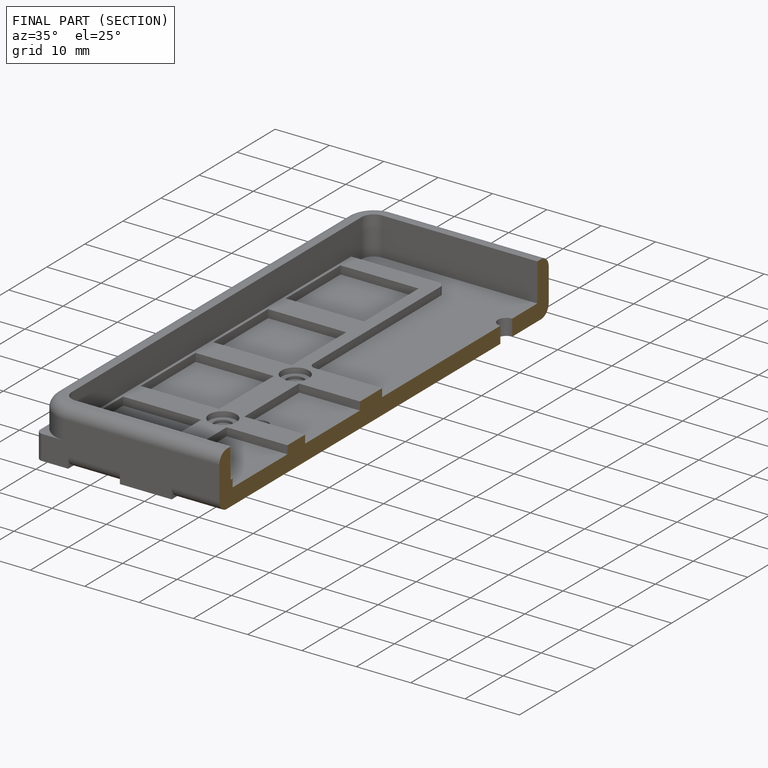
[diagram: finished part — half-section view (interior)]
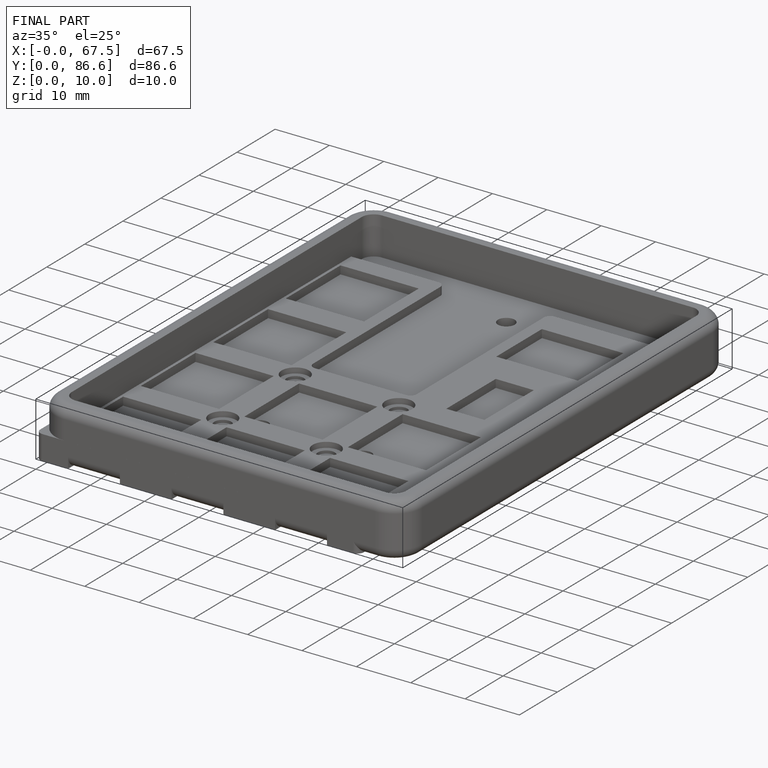
[diagram: finished part — iso view with bounding-box wireframe]
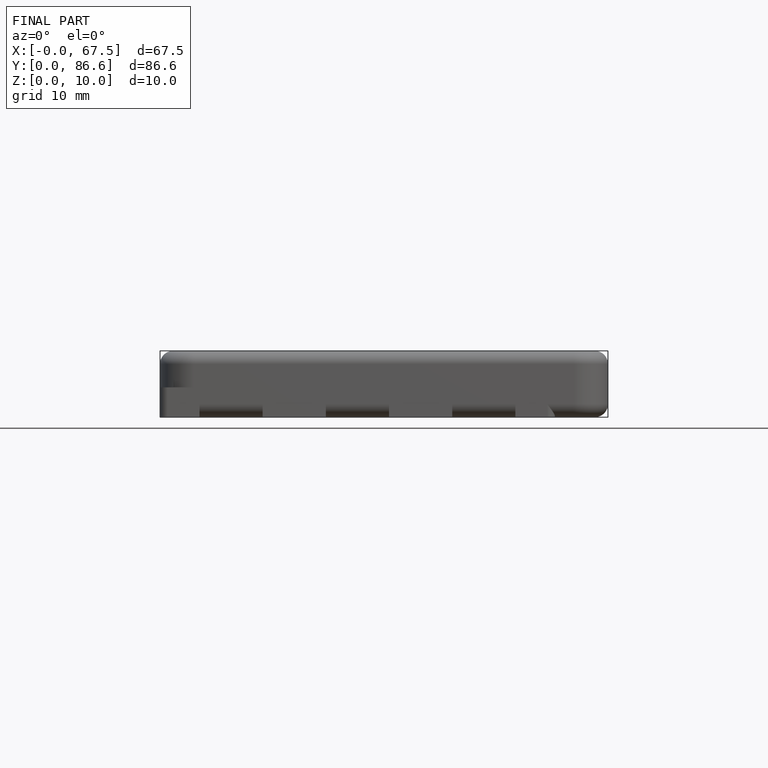
[diagram: finished part — front view with bounding-box wireframe]
